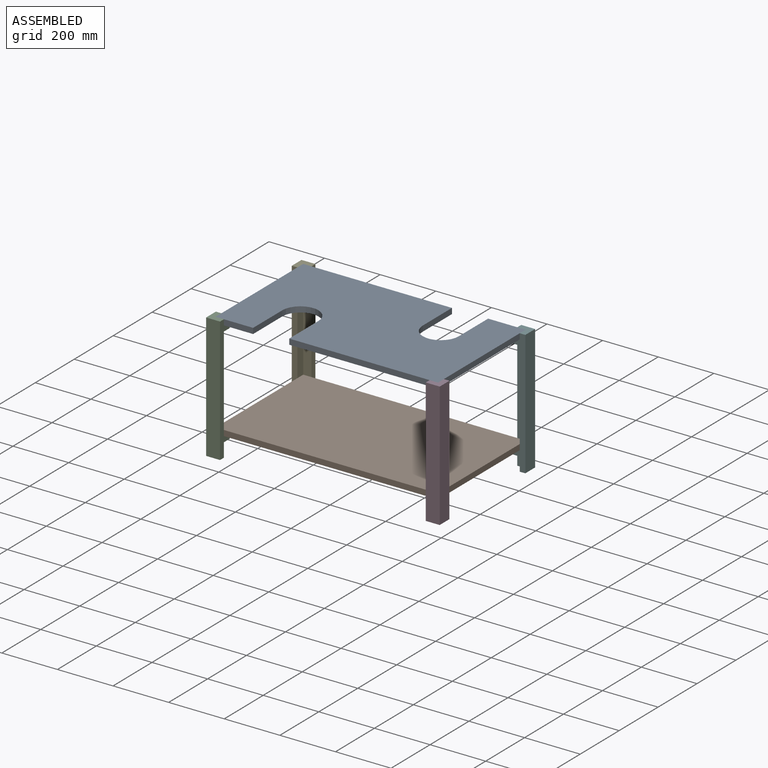
[diagram: assembled view]
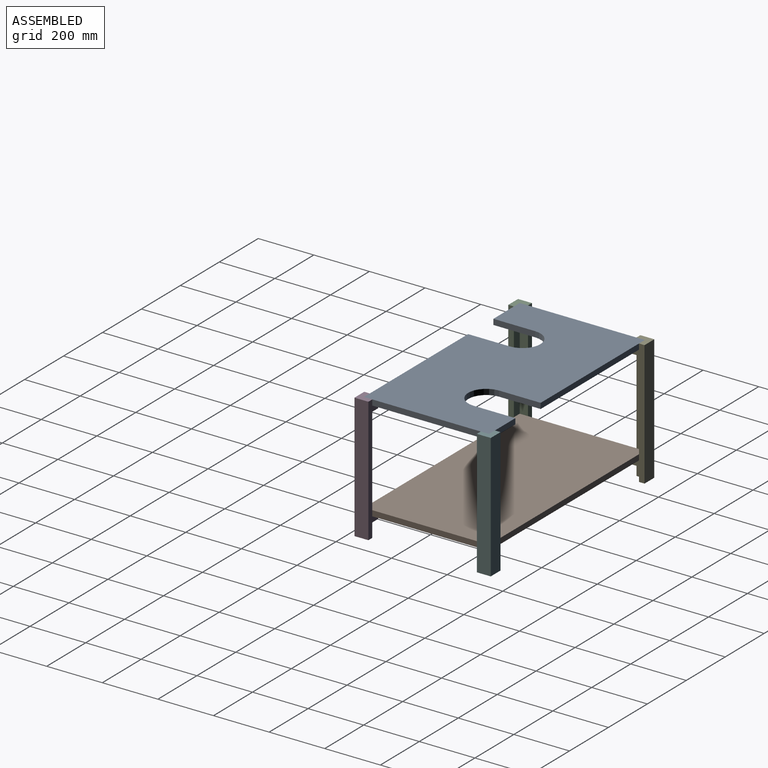
[diagram: assembled view, second angle]
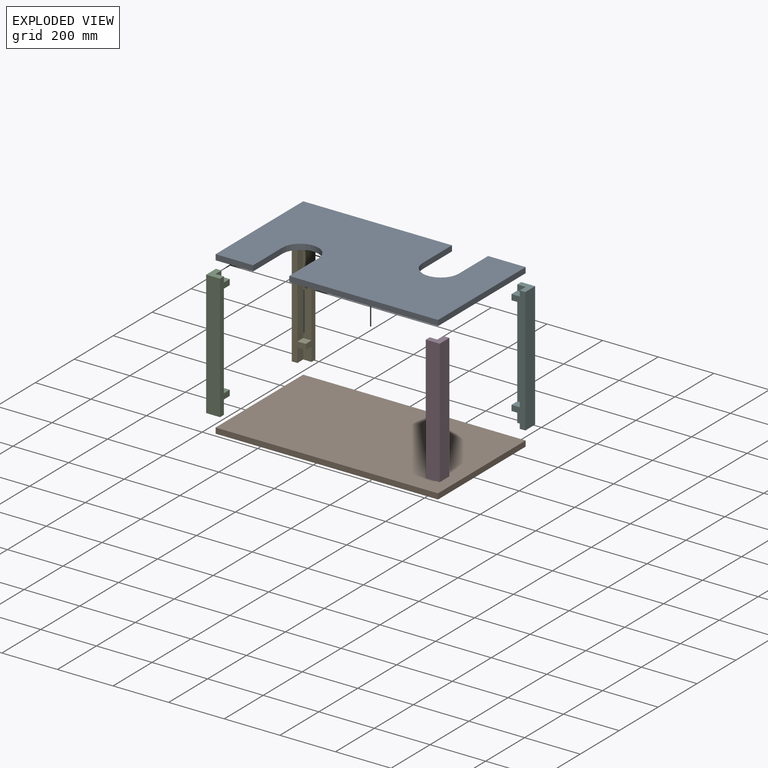
[diagram: exploded view]
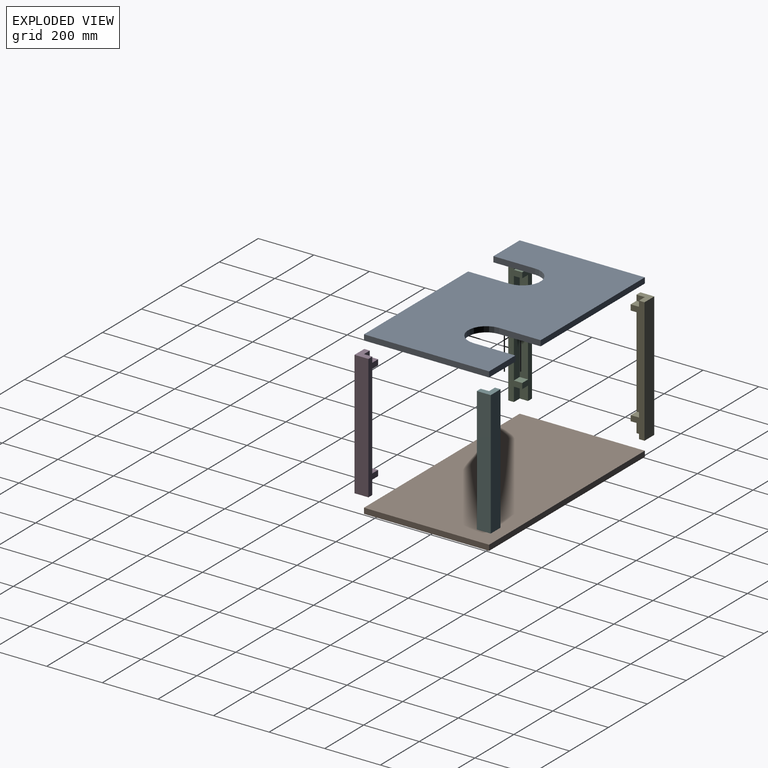
[diagram: exploded view, second angle]
ASSEMBLY  parts=6 mates=5
PART A: 14 faces, bbox 800x450x20 mm
  f0: plane 135x20mm, normal (0,-1,0), area 2700mm2, adj f1,f6,f9,f12
  f1: plane 800x450mm, normal (0,0,1), area 307726.8mm2, adj f0,f2,f3,f4,f5,f6,f7,f8
  f2: cylinder r=65mm len=130mm, axis (0,0,1), area 4084.1mm2, adj f1,f9,f12,f13
  f3: plane 135x20mm, normal (0,1,0), area 2700mm2, adj f1,f8,f9,f10
  f4: cylinder r=65mm len=130mm, axis (0,0,1), area 4084.1mm2, adj f1,f9,f10,f11
  f5: plane 535x20mm, normal (0,1,0), area 10700mm2, adj f1,f6,f9,f11
  f6: plane 450x20mm, normal (-1,0,0), area 9000mm2, adj f0,f1,f5,f9
  f7: plane 535x20mm, normal (0,-1,0), area 10700mm2, adj f1,f8,f9,f13
  f8: plane 450x20mm, normal (1,0,0), area 9000mm2, adj f1,f3,f7,f9
  f9: plane 800x450mm, normal (0,0,-1), area 307726.8mm2, adj f0,f2,f3,f4,f5,f6,f7,f8
  f10: plane 150x20mm, normal (-1,0,0), area 3000mm2, adj f1,f3,f4,f9
  f11: plane 150x20mm, normal (1,0,0), area 3000mm2, adj f1,f4,f5,f9
  f12: plane 150x20mm, normal (1,0,0), area 3000mm2, adj f0,f1,f2,f9
  f13: plane 150x20mm, normal (-1,0,0), area 3000mm2, adj f1,f2,f7,f9
PART B: 6 faces, bbox 800x450x20 mm
  f0: plane 800x20mm, normal (0,1,0), area 16000mm2, adj f1,f3,f4,f5
  f1: plane 450x20mm, normal (-1,0,0), area 9000mm2, adj f0,f2,f4,f5
  f2: plane 800x20mm, normal (0,-1,0), area 16000mm2, adj f1,f3,f4,f5
  f3: plane 450x20mm, normal (1,0,0), area 9000mm2, adj f0,f2,f4,f5
  f4: plane 800x450mm, normal (0,0,1), area 360000mm2, adj f0,f1,f2,f3
  f5: plane 800x450mm, normal (0,0,-1), area 360000mm2, adj f0,f1,f2,f3
PART C: 16 faces, bbox 50x50x450 mm
  f0: plane 450x50mm, normal (0,-1,0), area 10200mm2, adj f1,f3,f4,f6,f7,f8,f9,f11
  f1: plane 340x30mm, normal (1,0,0), area 10200mm2, adj f0,f2,f8,f12
  f2: plane 340x30mm, normal (0,-1,0), area 10200mm2, adj f1,f3,f8,f12
  f3: plane 450x50mm, normal (1,0,0), area 10200mm2, adj f0,f2,f5,f6,f7,f8,f10,f11
  f4: plane 450x50mm, normal (-1,0,0), area 22500mm2, adj f0,f5,f6,f7
  f5: plane 450x50mm, normal (0,1,0), area 22500mm2, adj f3,f4,f6,f7
  f6: plane 50x50mm, normal (0,0,1), area 1600mm2, adj f0,f3,f4,f5,f13,f14
  f7: plane 50x50mm, normal (0,0,-1), area 1600mm2, adj f0,f3,f4,f5,f9,f10
  f8: plane 30x30mm, normal (0,0,1), area 900mm2, adj f0,f1,f2,f3
  f9: plane 50x30mm, normal (1,0,0), area 1500mm2, adj f0,f7,f10,f11
  f10: plane 50x30mm, normal (0,-1,0), area 1500mm2, adj f3,f7,f9,f11
  f11: plane 30x30mm, normal (0,0,-1), area 900mm2, adj f0,f3,f9,f10
  f12: plane 30x30mm, normal (0,0,-1), area 900mm2, adj f0,f1,f2,f3
  f13: plane 30x20mm, normal (1,0,0), area 600mm2, adj f0,f6,f14,f15
  f14: plane 30x20mm, normal (0,-1,0), area 600mm2, adj f3,f6,f13,f15
  f15: plane 30x30mm, normal (0,0,1), area 900mm2, adj f0,f3,f13,f14
PART D: same geometry as C
PART E: same geometry as C
PART F: same geometry as C
PLACE A t=(-255.07,-87.71,-118.61)mm
PLACE B rot(axis=(0,1,0),180deg) t=(544.93,-87.71,-458.61)mm
PLACE C rot(axis=(0,0,1),90deg) t=(-225.07,-557.71,-548.61)mm
PLACE D rot(axis=(0,0,1),180deg) t=(564.93,-507.71,-548.61)mm
PLACE E t=(-275.07,-117.71,-548.61)mm
PLACE F rot(axis=(0,0,-1),90deg) t=(514.93,-67.71,-548.61)mm
MATE fastened E.f8 <-> B.f4  axis (0,0,1) through (-240.07,-102.71,-478.61)mm
MATE fastened F.f15 <-> A.f9  axis (0,0,1) through (529.93,-102.71,-118.61)mm
MATE fastened C.f8 <-> B.f4  axis (0,0,1) through (-240.07,-522.71,-478.61)mm
MATE fastened A.f9 <-> C.f15  axis (0,0,-1) through (-240.07,-522.71,-118.61)mm
MATE fastened D.f8 <-> B.f4  axis (0,0,1) through (529.93,-522.71,-478.61)mm
